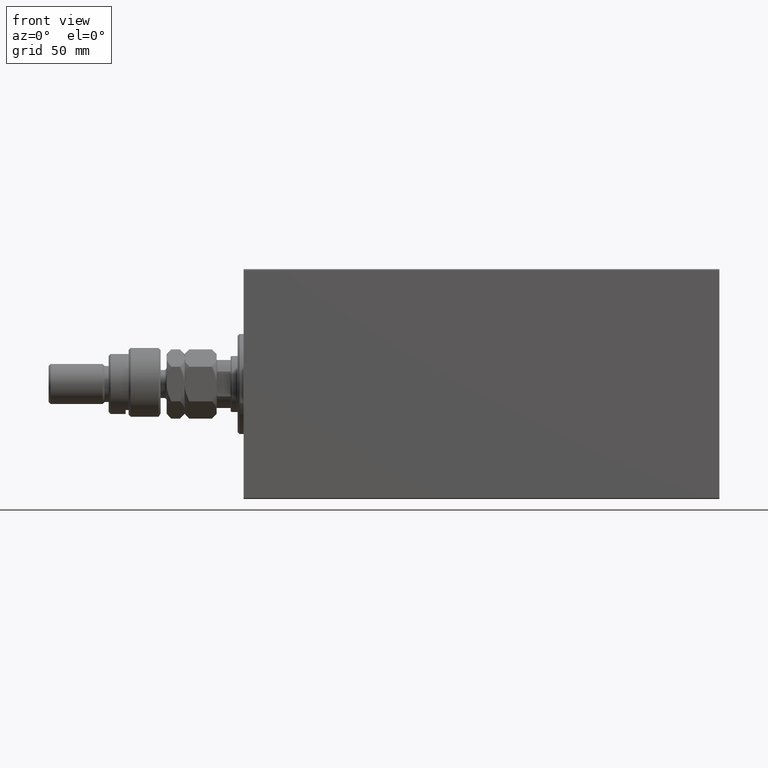
[diagram: clean part render]
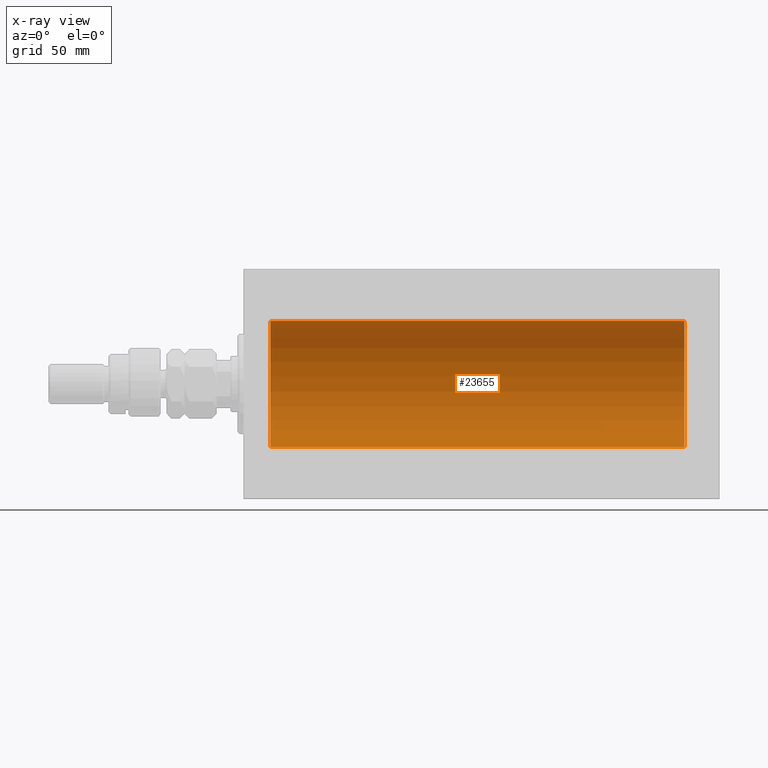
[diagram: x-ray — body ghosted, one internal face saturated and labeled with its STEP entity id]
A machine part, front view, then the same camera in x-ray: the body is ghosted and one INTERNAL B-rep face — a face not visible from any outside direction — is saturated and labeled: STEP entity #23655.
In plain terms, the highlighted cylindrical surface (partial cylindrical patch) has radius 31.5 mm, axis along (-1, -0, -0).
Its self-contained STEP definition (entity closure, byte-faithful):
#436 = CARTESIAN_POINT ( 'NONE',  ( 13.50000000000001243, 0.000000000000000000, 0.000000000000000000 ) ) ;
#982 = LINE ( 'NONE', #33299, #5700 ) ;
#5414 = ORIENTED_EDGE ( 'NONE', *, *, #35981, .T. ) ;
#5560 = CIRCLE ( 'NONE', #41726, 31.50000000000000000 ) ;
#5700 = VECTOR ( 'NONE', #25507, 1000.000000000000000 ) ;
#6086 = CIRCLE ( 'NONE', #7579, 31.50000000000000000 ) ;
#6646 = DIRECTION ( 'NONE',  ( -1.000000000000000000, -0.000000000000000000, -0.000000000000000000 ) ) ;
#7365 = DIRECTION ( 'NONE',  ( 0.000000000000000000, 0.000000000000000000, 1.000000000000000000 ) ) ;
#7579 = AXIS2_PLACEMENT_3D ( 'NONE', #436, #24952, #24713 ) ;
#8065 = DIRECTION ( 'NONE',  ( -1.000000000000000000, -0.000000000000000000, -0.000000000000000000 ) ) ;
#10277 = CARTESIAN_POINT ( 'NONE',  ( 13.50000000000001243, 3.857637417314162689E-15, -31.50000000000000000 ) ) ;
#10467 = EDGE_LOOP ( 'NONE', ( #45071, #30430, #5414, #33739 ) ) ;
#11186 = AXIS2_PLACEMENT_3D ( 'NONE', #29070, #8065, #7365 ) ;
#11605 = FACE_OUTER_BOUND ( 'NONE', #10467, .T. ) ;
#13027 = CARTESIAN_POINT ( 'NONE',  ( 220.5000000000000000, 0.000000000000000000, 0.000000000000000000 ) ) ;
#13181 = EDGE_CURVE ( 'NONE', #45583, #35361, #5560, .T. ) ;
#15210 = VECTOR ( 'NONE', #6646, 1000.000000000000000 ) ;
#23030 = CARTESIAN_POINT ( 'NONE',  ( 13.50000000000001243, 0.000000000000000000, 31.50000000000000000 ) ) ;
#23050 = VERTEX_POINT ( 'NONE', #23030 ) ;
#23655 = ADVANCED_FACE ( 'NONE', ( #11605 ), #25049, .F. ) ;
#24713 = DIRECTION ( 'NONE',  ( 0.000000000000000000, 0.000000000000000000, 1.000000000000000000 ) ) ;
#24952 = DIRECTION ( 'NONE',  ( -1.000000000000000000, 0.000000000000000000, 0.000000000000000000 ) ) ;
#25049 = CYLINDRICAL_SURFACE ( 'NONE', #11186, 31.50000000000000000 ) ;
#25507 = DIRECTION ( 'NONE',  ( -1.000000000000000000, -0.000000000000000000, -0.000000000000000000 ) ) ;
#27868 = DIRECTION ( 'NONE',  ( 0.000000000000000000, 0.000000000000000000, 1.000000000000000000 ) ) ;
#29070 = CARTESIAN_POINT ( 'NONE',  ( 220.5000000000000000, 0.000000000000000000, 0.000000000000000000 ) ) ;
#30430 = ORIENTED_EDGE ( 'NONE', *, *, #13181, .F. ) ;
#31909 = LINE ( 'NONE', #46527, #15210 ) ;
#33109 = EDGE_CURVE ( 'NONE', #23050, #44035, #6086, .T. ) ;
#33299 = CARTESIAN_POINT ( 'NONE',  ( 220.5000000000000000, 3.857637417314162689E-15, -31.50000000000000000 ) ) ;
#33739 = ORIENTED_EDGE ( 'NONE', *, *, #33109, .T. ) ;
#35361 = VERTEX_POINT ( 'NONE', #41927 ) ;
#35981 = EDGE_CURVE ( 'NONE', #45583, #23050, #31909, .T. ) ;
#38255 = CARTESIAN_POINT ( 'NONE',  ( 220.5000000000000000, 0.000000000000000000, 31.50000000000000000 ) ) ;
#41726 = AXIS2_PLACEMENT_3D ( 'NONE', #13027, #42038, #27868 ) ;
#41927 = CARTESIAN_POINT ( 'NONE',  ( 220.5000000000000000, 3.857637417314162689E-15, -31.50000000000000000 ) ) ;
#42038 = DIRECTION ( 'NONE',  ( -1.000000000000000000, 0.000000000000000000, 0.000000000000000000 ) ) ;
#44035 = VERTEX_POINT ( 'NONE', #10277 ) ;
#45071 = ORIENTED_EDGE ( 'NONE', *, *, #46431, .F. ) ;
#45583 = VERTEX_POINT ( 'NONE', #38255 ) ;
#46431 = EDGE_CURVE ( 'NONE', #35361, #44035, #982, .T. ) ;
#46527 = CARTESIAN_POINT ( 'NONE',  ( 220.5000000000000000, 0.000000000000000000, 31.50000000000000000 ) ) ;